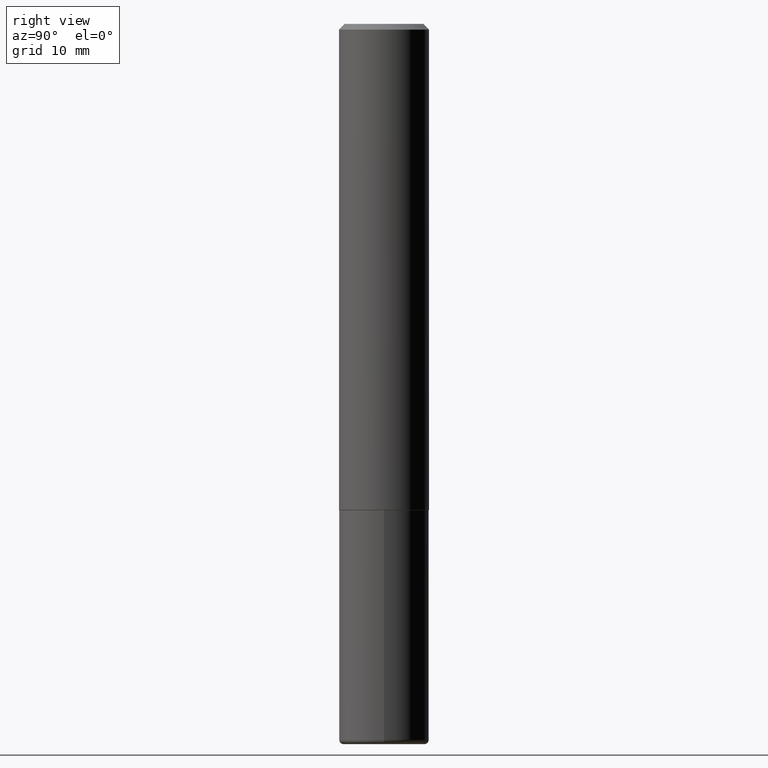
[diagram: clean part render]
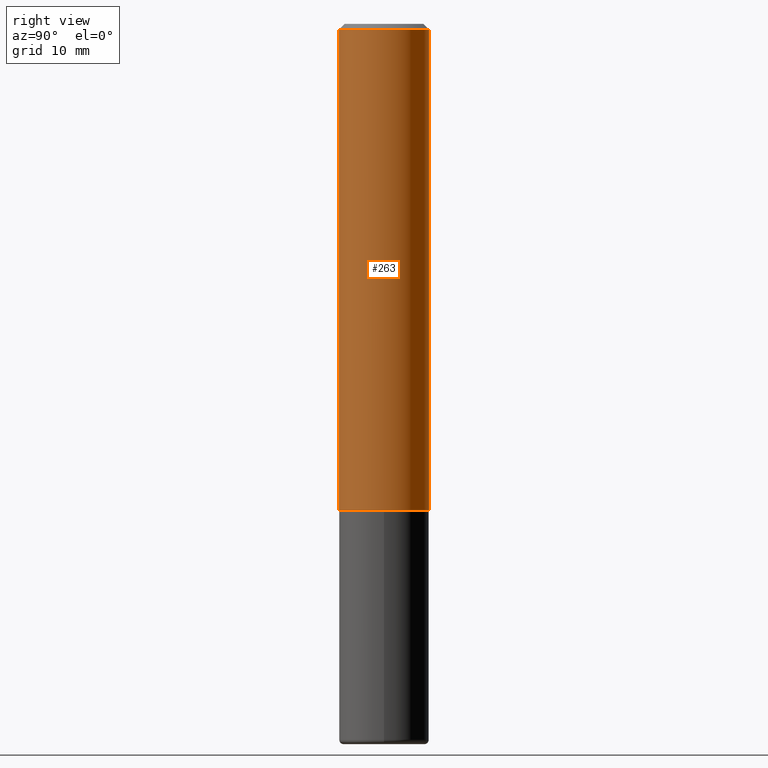
[diagram: same view with one face highlighted and labeled with its STEP entity id]
A machine part, right view. The second image highlights one B-rep face of the part: STEP entity #263.
In plain terms, the highlighted cylindrical surface (partial cylindrical patch) has radius 3.9688 mm, axis along (-0, 0, 1).
Its self-contained STEP definition (entity closure, byte-faithful):
#1 = CARTESIAN_POINT ( 'NONE',  ( 4.124618234985879242E-29, -5.891400171131153383E-15, -1.687000000000000055 ) ) ;
#5 = CARTESIAN_POINT ( 'NONE',  ( 1.110223024625157132E-15, 0.1562500000000001110, -5.456616933842580190E-16 ) ) ;
#6 = EDGE_CURVE ( 'NONE', #141, #178, #191, .T. ) ;
#14 = VERTEX_POINT ( 'NONE', #24 ) ;
#22 = VECTOR ( 'NONE', #342, 39.37007874015748143 ) ;
#24 = CARTESIAN_POINT ( 'NONE',  ( 1.110223024625178234E-15, 0.1562499999999943101, -1.687000000000000499 ) ) ;
#33 = DIRECTION ( 'NONE',  ( -6.982962677686265922E-15, -1.000000000000000000, 3.496765431890251792E-15 ) ) ;
#37 = LINE ( 'NONE', #5, #161 ) ;
#41 = EDGE_LOOP ( 'NONE', ( #225, #294, #244, #174 ) ) ;
#54 = CARTESIAN_POINT ( 'NONE',  ( -1.071952812151801215E-15, -0.1562500000000000833, -0.01999999999999948694 ) ) ;
#64 = CARTESIAN_POINT ( 'NONE',  ( -1.091087918388439336E-15, -0.1562500000000061062, -1.686999999999999611 ) ) ;
#72 = AXIS2_PLACEMENT_3D ( 'NONE', #124, #256, #374 ) ;
#74 = EDGE_CURVE ( 'NONE', #141, #14, #104, .T. ) ;
#87 = CARTESIAN_POINT ( 'NONE',  ( 4.889885281548175324E-31, -6.984469675318509427E-17, -0.02000000000000003511 ) ) ;
#98 = CIRCLE ( 'NONE', #354, 0.1562500000000000000 ) ;
#104 = CIRCLE ( 'NONE', #346, 0.1562500000000002220 ) ;
#124 = CARTESIAN_POINT ( 'NONE',  ( 0.000000000000000000, 0.000000000000000000, 0.000000000000000000 ) ) ;
#130 = EDGE_CURVE ( 'NONE', #14, #217, #37, .T. ) ;
#141 = VERTEX_POINT ( 'NONE', #64 ) ;
#161 = VECTOR ( 'NONE', #235, 39.37007874015748143 ) ;
#174 = ORIENTED_EDGE ( 'NONE', *, *, #6, .F. ) ;
#178 = VERTEX_POINT ( 'NONE', #54 ) ;
#191 = LINE ( 'NONE', #316, #22 ) ;
#217 = VERTEX_POINT ( 'NONE', #337 ) ;
#219 = EDGE_CURVE ( 'NONE', #178, #217, #98, .T. ) ;
#225 = ORIENTED_EDGE ( 'NONE', *, *, #74, .T. ) ;
#235 = DIRECTION ( 'NONE',  ( -2.444942640774083791E-29, 3.492234837659248797E-15, 1.000000000000000000 ) ) ;
#244 = ORIENTED_EDGE ( 'NONE', *, *, #219, .F. ) ;
#253 = FACE_OUTER_BOUND ( 'NONE', #41, .T. ) ;
#256 = DIRECTION ( 'NONE',  ( -2.444942640774083791E-29, 3.492234837659248797E-15, 1.000000000000000000 ) ) ;
#263 = ADVANCED_FACE ( 'NONE', ( #253 ), #289, .T. ) ;
#289 = CYLINDRICAL_SURFACE ( 'NONE', #72, 0.1562500000000001110 ) ;
#294 = ORIENTED_EDGE ( 'NONE', *, *, #130, .T. ) ;
#316 = CARTESIAN_POINT ( 'NONE',  ( -1.091087918388479765E-15, -0.1562500000000001110, 5.456616933842580190E-16 ) ) ;
#324 = DIRECTION ( 'NONE',  ( -2.444942640774083791E-29, 3.492234837659248797E-15, 1.000000000000000000 ) ) ;
#337 = CARTESIAN_POINT ( 'NONE',  ( 1.091087918388479568E-15, 0.1562499999999999445, -0.02000000000000057981 ) ) ;
#341 = DIRECTION ( 'NONE',  ( -6.982962677686265133E-15, -1.000000000000000000, 3.496765431890256920E-15 ) ) ;
#342 = DIRECTION ( 'NONE',  ( -2.444942640774083791E-29, 3.492234837659248797E-15, 1.000000000000000000 ) ) ;
#346 = AXIS2_PLACEMENT_3D ( 'NONE', #1, #324, #33 ) ;
#354 = AXIS2_PLACEMENT_3D ( 'NONE', #87, #403, #341 ) ;
#374 = DIRECTION ( 'NONE',  ( -6.982962677686265922E-15, -1.000000000000000000, 3.492234837659248797E-15 ) ) ;
#403 = DIRECTION ( 'NONE',  ( -2.444942640774083791E-29, 3.492234837659248797E-15, 1.000000000000000000 ) ) ;